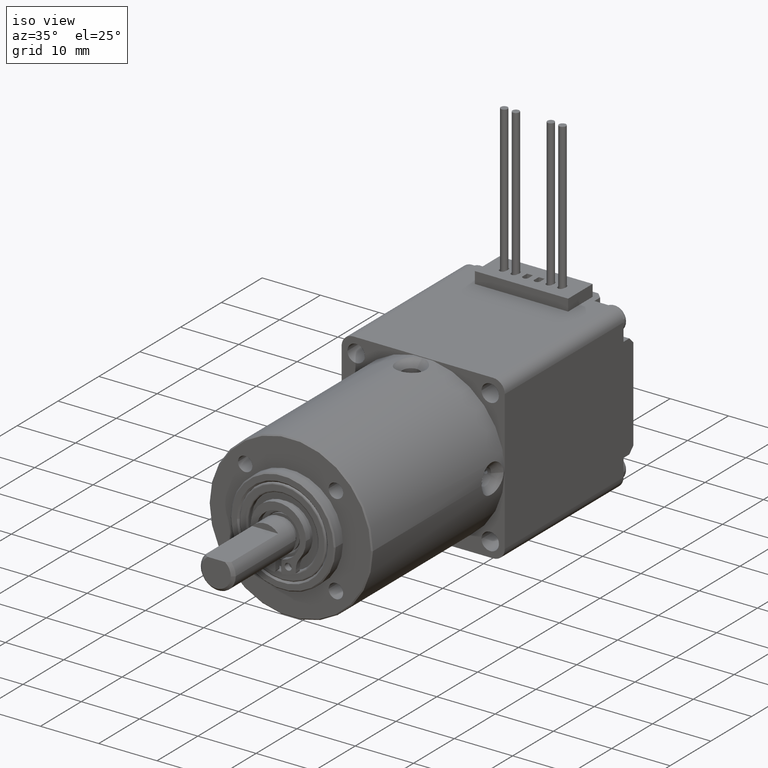
[diagram: clean part render]
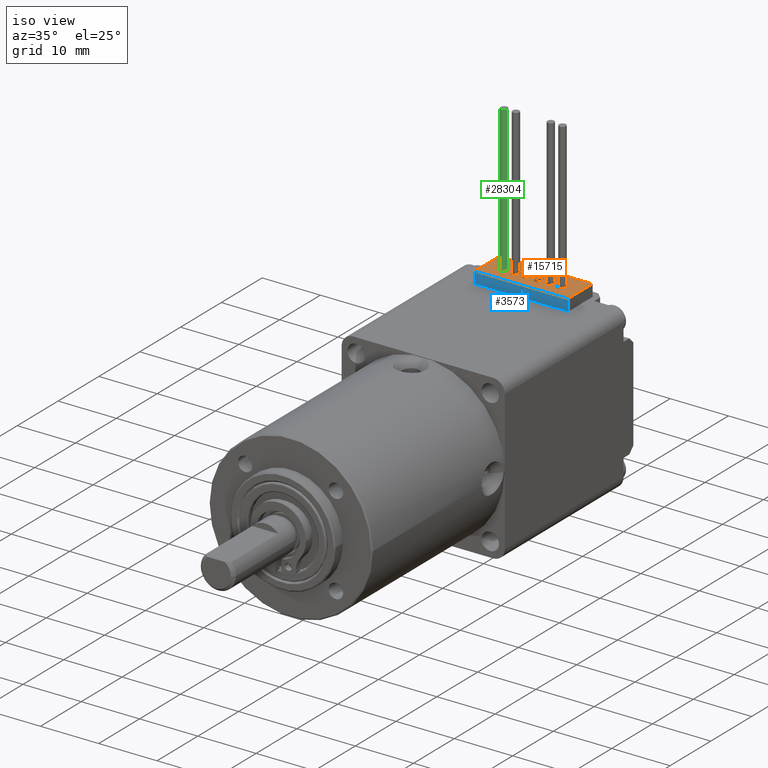
[diagram: same view with three faces highlighted in distinct colors, each labeled with its STEP entity id]
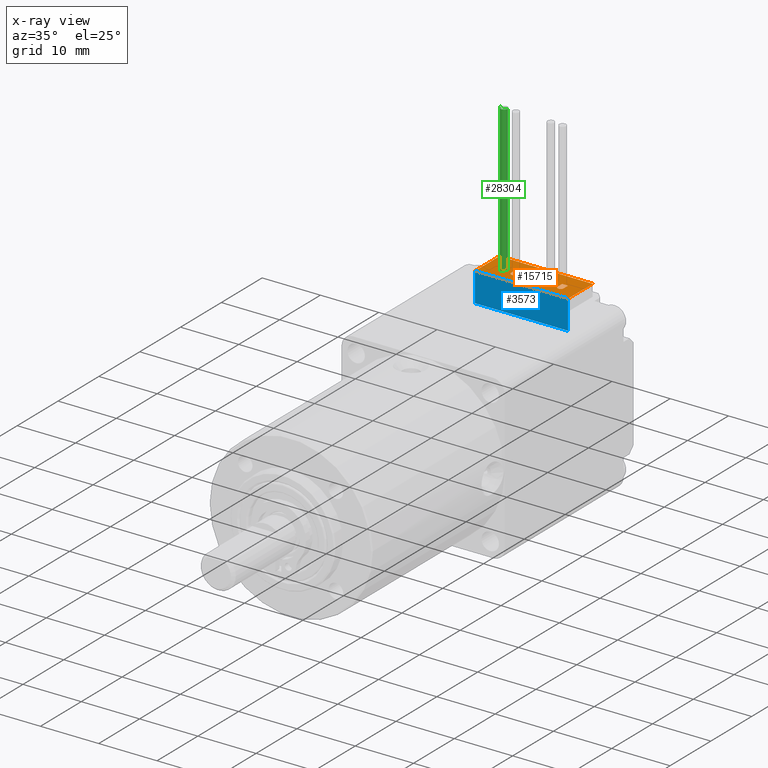
[diagram: x-ray of the same camera — body ghosted, the three highlighted faces saturated]
A machine part, iso view with three faces highlighted in distinct colors.
The next image is the same camera in x-ray (body ghosted, the three faces saturated) — at least one of them is partly hidden behind the body in this view.
Their STEP definitions:

[orange] entity #15715 — the highlighted planar face has unit normal (0, 0, -1).
#7 = CARTESIAN_POINT ( 'NONE',  ( -0.5062211864427633712, 3.499999999999999556, 2.500000000000000000 ) ) ;
#76 = LINE ( 'NONE', #9829, #18754 ) ;
#89 = CARTESIAN_POINT ( 'NONE',  ( -8.000000000000000000, 0.000000000000000000, 2.500000000000000000 ) ) ;
#469 = AXIS2_PLACEMENT_3D ( 'NONE', #10550, #18102, #5594 ) ;
#518 = AXIS2_PLACEMENT_3D ( 'NONE', #22617, #17167, #17483 ) ;
#535 = ORIENTED_EDGE ( 'NONE', *, *, #19281, .F. ) ;
#557 = AXIS2_PLACEMENT_3D ( 'NONE', #6769, #17025, #4203 ) ;
#718 = CIRCLE ( 'NONE', #27326, 0.4999999999999995559 ) ;
#798 = VERTEX_POINT ( 'NONE', #24814 ) ;
#1013 = CARTESIAN_POINT ( 'NONE',  ( -1.499999999999999556, 2.500000000000000000, 2.500000000000000000 ) ) ;
#1094 = ORIENTED_EDGE ( 'NONE', *, *, #5112, .F. ) ;
#1105 = CARTESIAN_POINT ( 'NONE',  ( 2.500000000000000444, 2.500000000000000000, 2.500000000000000000 ) ) ;
#1228 = ORIENTED_EDGE ( 'NONE', *, *, #20457, .F. ) ;
#1257 = CARTESIAN_POINT ( 'NONE',  ( -5.500000000000000000, 2.500000000000000000, 2.500000000000000000 ) ) ;
#1399 = ORIENTED_EDGE ( 'NONE', *, *, #19503, .F. ) ;
#1486 = CARTESIAN_POINT ( 'NONE',  ( -5.003110593221381741, 3.555685881794154568, 2.500000000000000000 ) ) ;
#1495 = DIRECTION ( 'NONE',  ( 1.000000000000000000, 0.000000000000000000, 0.000000000000000000 ) ) ;
#1588 = CARTESIAN_POINT ( 'NONE',  ( -5.003110593221381741, 3.555685881794154568, 2.500000000000000000 ) ) ;
#1641 = DIRECTION ( 'NONE',  ( 0.000000000000000000, 0.000000000000000000, -1.000000000000000000 ) ) ;
#1690 = DIRECTION ( 'NONE',  ( -0.000000000000000000, -1.000000000000000000, -0.000000000000000000 ) ) ;
#2063 = VERTEX_POINT ( 'NONE', #18542 ) ;
#2295 = VECTOR ( 'NONE', #11410, 1000.000000000000000 ) ;
#2318 = LINE ( 'NONE', #12407, #5212 ) ;
#2630 = CARTESIAN_POINT ( 'NONE',  ( 2.496889406778619147, 3.555685881794154568, 2.500000000000000000 ) ) ;
#2836 = CIRCLE ( 'NONE', #22787, 0.4999999999999995559 ) ;
#2873 = CARTESIAN_POINT ( 'NONE',  ( 4.996889406778618259, 3.555685881794154568, 2.500000000000000000 ) ) ;
#3093 = AXIS2_PLACEMENT_3D ( 'NONE', #2873, #7988, #8147 ) ;
#3187 = CIRCLE ( 'NONE', #8739, 0.4999999999999995559 ) ;
#3192 = ORIENTED_EDGE ( 'NONE', *, *, #17500, .F. ) ;
#3227 = EDGE_LOOP ( 'NONE', ( #7575, #535, #20154, #17804, #27450, #11303 ) ) ;
#3383 = VECTOR ( 'NONE', #19199, 1000.000000000000000 ) ;
#3391 = VECTOR ( 'NONE', #28291, 1000.000000000000000 ) ;
#3534 = CARTESIAN_POINT ( 'NONE',  ( 2.500000000000000444, 2.500000000000000000, 2.500000000000000000 ) ) ;
#3626 = CARTESIAN_POINT ( 'NONE',  ( -3.499999999999999556, 2.500000000000000000, 2.500000000000000000 ) ) ;
#3751 = EDGE_CURVE ( 'NONE', #22927, #798, #5145, .T. ) ;
#4026 = FACE_BOUND ( 'NONE', #26112, .T. ) ;
#4040 = EDGE_LOOP ( 'NONE', ( #1094, #1228, #6236, #10515, #20530, #5185 ) ) ;
#4044 = CIRCLE ( 'NONE', #3093, 0.4999999999999995559 ) ;
#4164 = EDGE_CURVE ( 'NONE', #29296, #13663, #4595, .T. ) ;
#4189 = FACE_BOUND ( 'NONE', #22444, .T. ) ;
#4203 = DIRECTION ( 'NONE',  ( -1.000000000000000000, 0.000000000000000000, 0.000000000000000000 ) ) ;
#4243 = AXIS2_PLACEMENT_3D ( 'NONE', #12108, #6835, #19653 ) ;
#4347 = DIRECTION ( 'NONE',  ( -1.000000000000000000, 0.000000000000000000, -0.000000000000000000 ) ) ;
#4387 = CIRCLE ( 'NONE', #17176, 0.4999999999999995559 ) ;
#4507 = EDGE_CURVE ( 'NONE', #21410, #29859, #19404, .T. ) ;
#4595 = LINE ( 'NONE', #26554, #11083 ) ;
#4704 = VERTEX_POINT ( 'NONE', #7 ) ;
#4763 = EDGE_CURVE ( 'NONE', #21325, #21410, #25052, .T. ) ;
#4775 = LINE ( 'NONE', #31397, #3383 ) ;
#5086 = CARTESIAN_POINT ( 'NONE',  ( 0.5000000000000004441, 2.500000000000000000, 2.500000000000000000 ) ) ;
#5112 = EDGE_CURVE ( 'NONE', #26284, #29929, #26414, .T. ) ;
#5131 = EDGE_CURVE ( 'NONE', #29859, #11601, #22114, .T. ) ;
#5145 = LINE ( 'NONE', #12360, #26966 ) ;
#5185 = ORIENTED_EDGE ( 'NONE', *, *, #12958, .F. ) ;
#5212 = VECTOR ( 'NONE', #29572, 1000.000000000000000 ) ;
#5245 = VERTEX_POINT ( 'NONE', #17893 ) ;
#5337 = EDGE_CURVE ( 'NONE', #20295, #5454, #28626, .T. ) ;
#5454 = VERTEX_POINT ( 'NONE', #6652 ) ;
#5468 = DIRECTION ( 'NONE',  ( -1.000000000000000000, 0.000000000000000000, 0.000000000000000000 ) ) ;
#5594 = DIRECTION ( 'NONE',  ( -1.000000000000000000, 0.000000000000000000, 0.000000000000000000 ) ) ;
#5729 = DIRECTION ( 'NONE',  ( 1.000000000000000000, 0.000000000000000000, 0.000000000000000000 ) ) ;
#5918 = LINE ( 'NONE', #8631, #12915 ) ;
#6024 = AXIS2_PLACEMENT_3D ( 'NONE', #11959, #31522, #9539 ) ;
#6042 = VERTEX_POINT ( 'NONE', #17042 ) ;
#6236 = ORIENTED_EDGE ( 'NONE', *, *, #20608, .F. ) ;
#6250 = CARTESIAN_POINT ( 'NONE',  ( 2.996889406778618703, 3.555685881794154568, 2.500000000000000000 ) ) ;
#6263 = CARTESIAN_POINT ( 'NONE',  ( 1.496889406778618037, 3.555685881794154568, 2.500000000000000000 ) ) ;
#6332 = CARTESIAN_POINT ( 'NONE',  ( 2.996889406778618703, 3.555685881794154568, 2.500000000000000000 ) ) ;
#6380 = ORIENTED_EDGE ( 'NONE', *, *, #24423, .F. ) ;
#6438 = DIRECTION ( 'NONE',  ( 0.000000000000000000, 0.000000000000000000, 1.000000000000000000 ) ) ;
#6586 = FACE_BOUND ( 'NONE', #27557, .T. ) ;
#6651 = CARTESIAN_POINT ( 'NONE',  ( 5.493778813557236518, 3.499999999999999556, 2.500000000000000000 ) ) ;
#6652 = CARTESIAN_POINT ( 'NONE',  ( -3.499999999999999556, 2.500000000000000000, 2.500000000000000000 ) ) ;
#6700 = DIRECTION ( 'NONE',  ( -1.000000000000000000, 0.000000000000000000, 0.000000000000000000 ) ) ;
#6754 = FACE_OUTER_BOUND ( 'NONE', #22855, .T. ) ;
#6769 = CARTESIAN_POINT ( 'NONE',  ( 4.996889406778618259, 3.555685881794154568, 2.500000000000000000 ) ) ;
#6835 = DIRECTION ( 'NONE',  ( 0.000000000000000000, 0.000000000000000000, 1.000000000000000000 ) ) ;
#7155 = DIRECTION ( 'NONE',  ( -0.000000000000000000, -1.000000000000000000, -0.000000000000000000 ) ) ;
#7575 = ORIENTED_EDGE ( 'NONE', *, *, #8443, .F. ) ;
#7632 = VECTOR ( 'NONE', #21763, 1000.000000000000000 ) ;
#7655 = ORIENTED_EDGE ( 'NONE', *, *, #29869, .F. ) ;
#7685 = VECTOR ( 'NONE', #19381, 1000.000000000000000 ) ;
#7815 = LINE ( 'NONE', #30266, #20609 ) ;
#7849 = ORIENTED_EDGE ( 'NONE', *, *, #18232, .F. ) ;
#7878 = CARTESIAN_POINT ( 'NONE',  ( -3.003110593221381741, 3.555685881794154568, 2.500000000000000000 ) ) ;
#7988 = DIRECTION ( 'NONE',  ( 0.000000000000000000, 0.000000000000000000, 1.000000000000000000 ) ) ;
#8031 = VERTEX_POINT ( 'NONE', #22587 ) ;
#8033 = CARTESIAN_POINT ( 'NONE',  ( -1.003110593221381519, 3.555685881794154568, 2.500000000000000000 ) ) ;
#8068 = CARTESIAN_POINT ( 'NONE',  ( -3.003110593221381741, 3.555685881794154568, 2.500000000000000000 ) ) ;
#8147 = DIRECTION ( 'NONE',  ( -1.000000000000000000, 0.000000000000000000, 0.000000000000000000 ) ) ;
#8443 = EDGE_CURVE ( 'NONE', #11992, #21325, #4775, .T. ) ;
#8572 = DIRECTION ( 'NONE',  ( -1.000000000000000000, 0.000000000000000000, 0.000000000000000000 ) ) ;
#8631 = CARTESIAN_POINT ( 'NONE',  ( -2.506221186442763482, 2.500000000000000000, 2.500000000000000000 ) ) ;
#8683 = ORIENTED_EDGE ( 'NONE', *, *, #27394, .F. ) ;
#8739 = AXIS2_PLACEMENT_3D ( 'NONE', #19736, #29541, #14623 ) ;
#8872 = ORIENTED_EDGE ( 'NONE', *, *, #9641, .F. ) ;
#8933 = VERTEX_POINT ( 'NONE', #6651 ) ;
#9051 = EDGE_CURVE ( 'NONE', #21996, #798, #17075, .T. ) ;
#9164 = VERTEX_POINT ( 'NONE', #28123 ) ;
#9276 = LINE ( 'NONE', #13779, #16397 ) ;
#9539 = DIRECTION ( 'NONE',  ( -1.000000000000000000, 0.000000000000000000, 0.000000000000000000 ) ) ;
#9553 = VERTEX_POINT ( 'NONE', #19876 ) ;
#9563 = VERTEX_POINT ( 'NONE', #27252 ) ;
#9591 = LINE ( 'NONE', #26446, #7685 ) ;
#9611 = DIRECTION ( 'NONE',  ( -0.000000000000000000, -1.000000000000000000, -0.000000000000000000 ) ) ;
#9641 = EDGE_CURVE ( 'NONE', #9553, #2063, #20737, .T. ) ;
#9829 = CARTESIAN_POINT ( 'NONE',  ( -1.499999999999999556, 2.500000000000000000, 2.500000000000000000 ) ) ;
#10007 = CARTESIAN_POINT ( 'NONE',  ( -4.506221186442763482, 2.500000000000000000, 2.500000000000000000 ) ) ;
#10041 = VERTEX_POINT ( 'NONE', #17733 ) ;
#10471 = DIRECTION ( 'NONE',  ( 1.000000000000000000, 0.000000000000000000, 0.000000000000000000 ) ) ;
#10515 = ORIENTED_EDGE ( 'NONE', *, *, #18795, .F. ) ;
#10550 = CARTESIAN_POINT ( 'NONE',  ( 0.9968894067786184809, 3.555685881794154568, 2.500000000000000000 ) ) ;
#10620 = CIRCLE ( 'NONE', #6024, 0.4999999999999995559 ) ;
#10800 = EDGE_CURVE ( 'NONE', #11601, #26617, #18501, .T. ) ;
#10803 = CARTESIAN_POINT ( 'NONE',  ( -5.500000000000000000, 2.500000000000000000, 2.500000000000000000 ) ) ;
#10976 = DIRECTION ( 'NONE',  ( 0.000000000000000000, 0.000000000000000000, 1.000000000000000000 ) ) ;
#11061 = CARTESIAN_POINT ( 'NONE',  ( -2.503110593221382185, 3.555685881794154568, 2.500000000000000000 ) ) ;
#11083 = VECTOR ( 'NONE', #7155, 1000.000000000000000 ) ;
#11117 = CARTESIAN_POINT ( 'NONE',  ( 0.5000000000000004441, 2.500000000000000000, 2.500000000000000000 ) ) ;
#11207 = VERTEX_POINT ( 'NONE', #21182 ) ;
#11246 = DIRECTION ( 'NONE',  ( -1.000000000000000000, 0.000000000000000000, 0.000000000000000000 ) ) ;
#11303 = ORIENTED_EDGE ( 'NONE', *, *, #4763, .F. ) ;
#11311 = AXIS2_PLACEMENT_3D ( 'NONE', #7878, #27430, #5468 ) ;
#11410 = DIRECTION ( 'NONE',  ( 1.000000000000000000, 0.000000000000000000, 0.000000000000000000 ) ) ;
#11495 = AXIS2_PLACEMENT_3D ( 'NONE', #1588, #16013, #6700 ) ;
#11521 = DIRECTION ( 'NONE',  ( 1.000000000000000000, 0.000000000000000000, 0.000000000000000000 ) ) ;
#11601 = VERTEX_POINT ( 'NONE', #19366 ) ;
#11959 = CARTESIAN_POINT ( 'NONE',  ( -5.003110593221381741, 3.555685881794154568, 2.500000000000000000 ) ) ;
#11992 = VERTEX_POINT ( 'NONE', #21707 ) ;
#12035 = CARTESIAN_POINT ( 'NONE',  ( -8.000000000000000000, 6.000000000000000000, 2.500000000000000000 ) ) ;
#12108 = CARTESIAN_POINT ( 'NONE',  ( 4.996889406778618259, 3.555685881794154568, 2.500000000000000000 ) ) ;
#12352 = EDGE_CURVE ( 'NONE', #28931, #11207, #23122, .T. ) ;
#12360 = CARTESIAN_POINT ( 'NONE',  ( 8.000000000000000000, 6.000000000000000000, 2.500000000000000000 ) ) ;
#12407 = CARTESIAN_POINT ( 'NONE',  ( -0.5062211864427633712, 2.500000000000000000, 2.500000000000000000 ) ) ;
#12503 = EDGE_CURVE ( 'NONE', #29126, #9553, #2836, .T. ) ;
#12564 = VERTEX_POINT ( 'NONE', #19731 ) ;
#12689 = ORIENTED_EDGE ( 'NONE', *, *, #19231, .F. ) ;
#12915 = VECTOR ( 'NONE', #20668, 1000.000000000000000 ) ;
#12958 = EDGE_CURVE ( 'NONE', #29929, #9563, #4387, .T. ) ;
#13025 = ORIENTED_EDGE ( 'NONE', *, *, #17137, .F. ) ;
#13118 = LINE ( 'NONE', #1105, #15445 ) ;
#13561 = DIRECTION ( 'NONE',  ( 0.000000000000000000, 0.000000000000000000, 1.000000000000000000 ) ) ;
#13628 = DIRECTION ( 'NONE',  ( 0.000000000000000000, 0.000000000000000000, 1.000000000000000000 ) ) ;
#13663 = VERTEX_POINT ( 'NONE', #26049 ) ;
#13779 = CARTESIAN_POINT ( 'NONE',  ( -3.499999999999999556, 2.500000000000000000, 2.500000000000000000 ) ) ;
#13799 = EDGE_CURVE ( 'NONE', #30531, #28931, #76, .T. ) ;
#13815 = FACE_BOUND ( 'NONE', #29844, .T. ) ;
#13904 = CARTESIAN_POINT ( 'NONE',  ( -8.000000000000000000, 0.000000000000000000, 2.500000000000000000 ) ) ;
#14060 = LINE ( 'NONE', #19506, #23137 ) ;
#14375 = CIRCLE ( 'NONE', #557, 0.4999999999999995559 ) ;
#14467 = CARTESIAN_POINT ( 'NONE',  ( 4.500000000000000888, 3.500000000000000000, 2.500000000000000000 ) ) ;
#14623 = DIRECTION ( 'NONE',  ( -1.000000000000000000, 0.000000000000000000, 0.000000000000000000 ) ) ;
#14800 = CARTESIAN_POINT ( 'NONE',  ( 8.000000000000000000, 6.000000000000000000, 2.500000000000000000 ) ) ;
#15247 = ORIENTED_EDGE ( 'NONE', *, *, #22386, .F. ) ;
#15360 = VECTOR ( 'NONE', #22881, 1000.000000000000000 ) ;
#15396 = VECTOR ( 'NONE', #1495, 1000.000000000000000 ) ;
#15417 = CIRCLE ( 'NONE', #20576, 0.4999999999999995559 ) ;
#15445 = VECTOR ( 'NONE', #21120, 1000.000000000000000 ) ;
#15477 = ORIENTED_EDGE ( 'NONE', *, *, #26859, .F. ) ;
#15494 = VECTOR ( 'NONE', #17706, 1000.000000000000000 ) ;
#15625 = LINE ( 'NONE', #10803, #19126 ) ;
#15648 = DIRECTION ( 'NONE',  ( -1.000000000000000000, 0.000000000000000000, 0.000000000000000000 ) ) ;
#15715 = ADVANCED_FACE ( 'NONE', ( #4026, #28564, #28732, #6586, #13815, #4189, #6754 ), #23589, .F. ) ;
#15803 = AXIS2_PLACEMENT_3D ( 'NONE', #25760, #13561, #23327 ) ;
#16013 = DIRECTION ( 'NONE',  ( 0.000000000000000000, 0.000000000000000000, 1.000000000000000000 ) ) ;
#16079 = EDGE_CURVE ( 'NONE', #2063, #6042, #10620, .T. ) ;
#16263 = EDGE_CURVE ( 'NONE', #9563, #27969, #22939, .T. ) ;
#16367 = ORIENTED_EDGE ( 'NONE', *, *, #9051, .T. ) ;
#16397 = VECTOR ( 'NONE', #11521, 1000.000000000000000 ) ;
#16532 = CARTESIAN_POINT ( 'NONE',  ( -8.000000000000000000, 6.000000000000000000, 2.500000000000000000 ) ) ;
#16736 = CARTESIAN_POINT ( 'NONE',  ( 2.500000000000000444, 3.500000000000000000, 2.500000000000000000 ) ) ;
#17025 = DIRECTION ( 'NONE',  ( 0.000000000000000000, 0.000000000000000000, 1.000000000000000000 ) ) ;
#17042 = CARTESIAN_POINT ( 'NONE',  ( -5.500000000000000000, 3.499999999999999556, 2.500000000000000000 ) ) ;
#17075 = LINE ( 'NONE', #89, #20811 ) ;
#17137 = EDGE_CURVE ( 'NONE', #4704, #26600, #29703, .T. ) ;
#17167 = DIRECTION ( 'NONE',  ( 0.000000000000000000, 0.000000000000000000, 1.000000000000000000 ) ) ;
#17176 = AXIS2_PLACEMENT_3D ( 'NONE', #6250, #13628, #23397 ) ;
#17479 = CIRCLE ( 'NONE', #21570, 0.4999999999999995559 ) ;
#17483 = DIRECTION ( 'NONE',  ( -1.000000000000000000, 0.000000000000000000, 0.000000000000000000 ) ) ;
#17500 = EDGE_CURVE ( 'NONE', #5454, #8031, #9276, .T. ) ;
#17553 = LINE ( 'NONE', #10007, #15494 ) ;
#17706 = DIRECTION ( 'NONE',  ( 0.000000000000000000, 1.000000000000000000, 0.000000000000000000 ) ) ;
#17733 = CARTESIAN_POINT ( 'NONE',  ( 5.496889406778618259, 3.555685881794154568, 2.500000000000000000 ) ) ;
#17747 = ORIENTED_EDGE ( 'NONE', *, *, #5337, .F. ) ;
#17804 = ORIENTED_EDGE ( 'NONE', *, *, #5131, .F. ) ;
#17893 = CARTESIAN_POINT ( 'NONE',  ( -3.503110593221381297, 3.555685881794154568, 2.500000000000000000 ) ) ;
#18102 = DIRECTION ( 'NONE',  ( 0.000000000000000000, 0.000000000000000000, 1.000000000000000000 ) ) ;
#18115 = CARTESIAN_POINT ( 'NONE',  ( 3.493778813557236518, 2.500000000000000000, 2.500000000000000000 ) ) ;
#18232 = EDGE_CURVE ( 'NONE', #10041, #29594, #14375, .T. ) ;
#18233 = LINE ( 'NONE', #1257, #15360 ) ;
#18494 = CIRCLE ( 'NONE', #11311, 0.4999999999999995559 ) ;
#18501 = LINE ( 'NONE', #11117, #3391 ) ;
#18521 = EDGE_CURVE ( 'NONE', #25131, #19898, #18494, .T. ) ;
#18542 = CARTESIAN_POINT ( 'NONE',  ( -5.503110593221380853, 3.555685881794154568, 2.500000000000000000 ) ) ;
#18754 = VECTOR ( 'NONE', #19153, 1000.000000000000000 ) ;
#18795 = EDGE_CURVE ( 'NONE', #27969, #28552, #15417, .T. ) ;
#18880 = ORIENTED_EDGE ( 'NONE', *, *, #28345, .F. ) ;
#19029 = DIRECTION ( 'NONE',  ( -0.000000000000000000, -1.000000000000000000, -0.000000000000000000 ) ) ;
#19057 = EDGE_CURVE ( 'NONE', #11207, #4704, #2318, .T. ) ;
#19126 = VECTOR ( 'NONE', #1690, 1000.000000000000000 ) ;
#19153 = DIRECTION ( 'NONE',  ( -0.000000000000000000, -1.000000000000000000, -0.000000000000000000 ) ) ;
#19199 = DIRECTION ( 'NONE',  ( 0.000000000000000000, 1.000000000000000000, 0.000000000000000000 ) ) ;
#19200 = CARTESIAN_POINT ( 'NONE',  ( 0.9968894067786184809, 3.555685881794154568, 2.500000000000000000 ) ) ;
#19231 = EDGE_CURVE ( 'NONE', #5245, #20295, #17479, .T. ) ;
#19281 = EDGE_CURVE ( 'NONE', #26617, #11992, #27792, .T. ) ;
#19366 = CARTESIAN_POINT ( 'NONE',  ( 0.5000000000000004441, 3.500000000000000000, 2.500000000000000000 ) ) ;
#19381 = DIRECTION ( 'NONE',  ( 0.000000000000000000, 1.000000000000000000, 0.000000000000000000 ) ) ;
#19382 = ORIENTED_EDGE ( 'NONE', *, *, #16079, .F. ) ;
#19404 = CIRCLE ( 'NONE', #15803, 0.4999999999999995559 ) ;
#19418 = EDGE_CURVE ( 'NONE', #9164, #22927, #30679, .T. ) ;
#19503 = EDGE_CURVE ( 'NONE', #19898, #5245, #3187, .T. ) ;
#19506 = CARTESIAN_POINT ( 'NONE',  ( 2.500000000000000444, 2.500000000000000000, 2.500000000000000000 ) ) ;
#19653 = DIRECTION ( 'NONE',  ( -1.000000000000000000, 0.000000000000000000, 0.000000000000000000 ) ) ;
#19731 = CARTESIAN_POINT ( 'NONE',  ( -4.506221186442763482, 2.500000000000000000, 2.500000000000000000 ) ) ;
#19736 = CARTESIAN_POINT ( 'NONE',  ( -3.003110593221381741, 3.555685881794154568, 2.500000000000000000 ) ) ;
#19876 = CARTESIAN_POINT ( 'NONE',  ( -4.503110593221381741, 3.555685881794154568, 2.500000000000000000 ) ) ;
#19898 = VERTEX_POINT ( 'NONE', #11061 ) ;
#20024 = CARTESIAN_POINT ( 'NONE',  ( -3.499999999999999556, 3.500000000000000000, 2.500000000000000000 ) ) ;
#20154 = ORIENTED_EDGE ( 'NONE', *, *, #10800, .F. ) ;
#20204 = ORIENTED_EDGE ( 'NONE', *, *, #29812, .F. ) ;
#20295 = VERTEX_POINT ( 'NONE', #20024 ) ;
#20331 = CARTESIAN_POINT ( 'NONE',  ( 0.4968894067786189805, 3.555685881794154568, 2.500000000000000000 ) ) ;
#20406 = DIRECTION ( 'NONE',  ( -1.000000000000000000, 0.000000000000000000, 0.000000000000000000 ) ) ;
#20457 = EDGE_CURVE ( 'NONE', #25303, #26284, #13118, .T. ) ;
#20530 = ORIENTED_EDGE ( 'NONE', *, *, #16263, .F. ) ;
#20532 = DIRECTION ( 'NONE',  ( 0.000000000000000000, 0.000000000000000000, 1.000000000000000000 ) ) ;
#20569 = DIRECTION ( 'NONE',  ( 0.000000000000000000, 0.000000000000000000, 1.000000000000000000 ) ) ;
#20576 = AXIS2_PLACEMENT_3D ( 'NONE', #27823, #10976, #29762 ) ;
#20608 = EDGE_CURVE ( 'NONE', #28552, #25303, #14060, .T. ) ;
#20609 = VECTOR ( 'NONE', #5729, 1000.000000000000000 ) ;
#20668 = DIRECTION ( 'NONE',  ( 0.000000000000000000, 1.000000000000000000, 0.000000000000000000 ) ) ;
#20737 = CIRCLE ( 'NONE', #11495, 0.4999999999999995559 ) ;
#20799 = DIRECTION ( 'NONE',  ( -0.000000000000000000, -1.000000000000000000, -0.000000000000000000 ) ) ;
#20811 = VECTOR ( 'NONE', #10471, 1000.000000000000000 ) ;
#20942 = ORIENTED_EDGE ( 'NONE', *, *, #23520, .T. ) ;
#20996 = CARTESIAN_POINT ( 'NONE',  ( 5.493778813557236518, 2.500000000000000000, 2.500000000000000000 ) ) ;
#21120 = DIRECTION ( 'NONE',  ( 1.000000000000000000, 0.000000000000000000, 0.000000000000000000 ) ) ;
#21182 = CARTESIAN_POINT ( 'NONE',  ( -0.5062211864427633712, 2.500000000000000000, 2.500000000000000000 ) ) ;
#21188 = ORIENTED_EDGE ( 'NONE', *, *, #19057, .F. ) ;
#21198 = CARTESIAN_POINT ( 'NONE',  ( -8.000000000000000000, 6.000000000000000000, 2.500000000000000000 ) ) ;
#21325 = VERTEX_POINT ( 'NONE', #22464 ) ;
#21410 = VERTEX_POINT ( 'NONE', #6263 ) ;
#21437 = CARTESIAN_POINT ( 'NONE',  ( 3.493778813557236518, 2.500000000000000000, 2.500000000000000000 ) ) ;
#21479 = ORIENTED_EDGE ( 'NONE', *, *, #3751, .F. ) ;
#21570 = AXIS2_PLACEMENT_3D ( 'NONE', #8068, #20569, #20406 ) ;
#21707 = CARTESIAN_POINT ( 'NONE',  ( 1.493778813557236518, 2.500000000000000000, 2.500000000000000000 ) ) ;
#21763 = DIRECTION ( 'NONE',  ( 0.000000000000000000, 1.000000000000000000, 0.000000000000000000 ) ) ;
#21991 = ORIENTED_EDGE ( 'NONE', *, *, #4164, .F. ) ;
#21996 = VERTEX_POINT ( 'NONE', #13904 ) ;
#22020 = CARTESIAN_POINT ( 'NONE',  ( -5.500000000000000000, 2.500000000000000000, 2.500000000000000000 ) ) ;
#22047 = ORIENTED_EDGE ( 'NONE', *, *, #12503, .F. ) ;
#22114 = CIRCLE ( 'NONE', #28794, 0.4999999999999995559 ) ;
#22130 = LINE ( 'NONE', #12035, #31186 ) ;
#22386 = EDGE_CURVE ( 'NONE', #26600, #22510, #718, .T. ) ;
#22444 = EDGE_LOOP ( 'NONE', ( #6380, #24061, #19382, #8872, #22047, #8683 ) ) ;
#22464 = CARTESIAN_POINT ( 'NONE',  ( 1.493778813557236518, 3.499999999999999556, 2.500000000000000000 ) ) ;
#22510 = VERTEX_POINT ( 'NONE', #28467 ) ;
#22587 = CARTESIAN_POINT ( 'NONE',  ( -2.506221186442763482, 2.500000000000000000, 2.500000000000000000 ) ) ;
#22617 = CARTESIAN_POINT ( 'NONE',  ( -1.003110593221381519, 3.555685881794154568, 2.500000000000000000 ) ) ;
#22787 = AXIS2_PLACEMENT_3D ( 'NONE', #1486, #6438, #11246 ) ;
#22855 = EDGE_LOOP ( 'NONE', ( #16367, #21479, #30879, #20942 ) ) ;
#22881 = DIRECTION ( 'NONE',  ( 1.000000000000000000, 0.000000000000000000, 0.000000000000000000 ) ) ;
#22927 = VERTEX_POINT ( 'NONE', #14800 ) ;
#22939 = CIRCLE ( 'NONE', #31641, 0.4999999999999995559 ) ;
#23122 = LINE ( 'NONE', #1013, #2295 ) ;
#23137 = VECTOR ( 'NONE', #19029, 1000.000000000000000 ) ;
#23318 = DIRECTION ( 'NONE',  ( 0.000000000000000000, 0.000000000000000000, 1.000000000000000000 ) ) ;
#23327 = DIRECTION ( 'NONE',  ( -1.000000000000000000, 0.000000000000000000, 0.000000000000000000 ) ) ;
#23397 = DIRECTION ( 'NONE',  ( -1.000000000000000000, 0.000000000000000000, 0.000000000000000000 ) ) ;
#23520 = EDGE_CURVE ( 'NONE', #9164, #21996, #22130, .T. ) ;
#23589 = PLANE ( 'NONE',  #29046 ) ;
#24061 = ORIENTED_EDGE ( 'NONE', *, *, #27634, .F. ) ;
#24423 = EDGE_CURVE ( 'NONE', #28587, #12564, #18233, .T. ) ;
#24814 = CARTESIAN_POINT ( 'NONE',  ( 8.000000000000000000, 0.000000000000000000, 2.500000000000000000 ) ) ;
#25052 = CIRCLE ( 'NONE', #469, 0.4999999999999995559 ) ;
#25123 = CARTESIAN_POINT ( 'NONE',  ( -1.003110593221381519, 3.555685881794154568, 2.500000000000000000 ) ) ;
#25131 = VERTEX_POINT ( 'NONE', #30005 ) ;
#25204 = VERTEX_POINT ( 'NONE', #20996 ) ;
#25303 = VERTEX_POINT ( 'NONE', #3534 ) ;
#25470 = CARTESIAN_POINT ( 'NONE',  ( -4.506221186442763482, 3.499999999999999556, 2.500000000000000000 ) ) ;
#25609 = DIRECTION ( 'NONE',  ( -0.000000000000000000, -1.000000000000000000, -0.000000000000000000 ) ) ;
#25760 = CARTESIAN_POINT ( 'NONE',  ( 0.9968894067786184809, 3.555685881794154568, 2.500000000000000000 ) ) ;
#25965 = CARTESIAN_POINT ( 'NONE',  ( -0.5031105932213819631, 3.555685881794154568, 2.500000000000000000 ) ) ;
#26049 = CARTESIAN_POINT ( 'NONE',  ( 4.500000000000000888, 2.500000000000000000, 2.500000000000000000 ) ) ;
#26112 = EDGE_LOOP ( 'NONE', ( #20204, #15477, #21991, #27973, #7849, #7655 ) ) ;
#26188 = ORIENTED_EDGE ( 'NONE', *, *, #30794, .F. ) ;
#26284 = VERTEX_POINT ( 'NONE', #18115 ) ;
#26414 = LINE ( 'NONE', #21437, #7632 ) ;
#26446 = CARTESIAN_POINT ( 'NONE',  ( 5.493778813557236518, 2.500000000000000000, 2.500000000000000000 ) ) ;
#26554 = CARTESIAN_POINT ( 'NONE',  ( 4.500000000000000888, 2.500000000000000000, 2.500000000000000000 ) ) ;
#26600 = VERTEX_POINT ( 'NONE', #25965 ) ;
#26617 = VERTEX_POINT ( 'NONE', #5086 ) ;
#26859 = EDGE_CURVE ( 'NONE', #13663, #25204, #7815, .T. ) ;
#26966 = VECTOR ( 'NONE', #20799, 1000.000000000000000 ) ;
#27029 = DIRECTION ( 'NONE',  ( -1.000000000000000000, 0.000000000000000000, 0.000000000000000000 ) ) ;
#27189 = EDGE_CURVE ( 'NONE', #29594, #29296, #27292, .T. ) ;
#27252 = CARTESIAN_POINT ( 'NONE',  ( 3.496889406778618259, 3.555685881794154568, 2.500000000000000000 ) ) ;
#27292 = CIRCLE ( 'NONE', #4243, 0.4999999999999995559 ) ;
#27326 = AXIS2_PLACEMENT_3D ( 'NONE', #25123, #29619, #27029 ) ;
#27365 = DIRECTION ( 'NONE',  ( 0.000000000000000000, 0.000000000000000000, 1.000000000000000000 ) ) ;
#27379 = ORIENTED_EDGE ( 'NONE', *, *, #12352, .F. ) ;
#27385 = CARTESIAN_POINT ( 'NONE',  ( -1.499999999999999556, 2.500000000000000000, 2.500000000000000000 ) ) ;
#27394 = EDGE_CURVE ( 'NONE', #12564, #29126, #17553, .T. ) ;
#27430 = DIRECTION ( 'NONE',  ( 0.000000000000000000, 0.000000000000000000, 1.000000000000000000 ) ) ;
#27436 = DIRECTION ( 'NONE',  ( -1.000000000000000000, 0.000000000000000000, 0.000000000000000000 ) ) ;
#27450 = ORIENTED_EDGE ( 'NONE', *, *, #4507, .F. ) ;
#27557 = EDGE_LOOP ( 'NONE', ( #21188, #27379, #28402, #26188, #15247, #13025 ) ) ;
#27624 = CARTESIAN_POINT ( 'NONE',  ( 0.5000000000000004441, 2.500000000000000000, 2.500000000000000000 ) ) ;
#27634 = EDGE_CURVE ( 'NONE', #6042, #28587, #15625, .T. ) ;
#27685 = VECTOR ( 'NONE', #30201, 1000.000000000000000 ) ;
#27792 = LINE ( 'NONE', #27624, #27685 ) ;
#27823 = CARTESIAN_POINT ( 'NONE',  ( 2.996889406778618703, 3.555685881794154568, 2.500000000000000000 ) ) ;
#27969 = VERTEX_POINT ( 'NONE', #2630 ) ;
#27973 = ORIENTED_EDGE ( 'NONE', *, *, #27189, .F. ) ;
#28123 = CARTESIAN_POINT ( 'NONE',  ( -8.000000000000000000, 6.000000000000000000, 2.500000000000000000 ) ) ;
#28152 = AXIS2_PLACEMENT_3D ( 'NONE', #8033, #20532, #27436 ) ;
#28278 = CARTESIAN_POINT ( 'NONE',  ( -1.499999999999999556, 3.500000000000000000, 2.500000000000000000 ) ) ;
#28291 = DIRECTION ( 'NONE',  ( -0.000000000000000000, -1.000000000000000000, -0.000000000000000000 ) ) ;
#28345 = EDGE_CURVE ( 'NONE', #8031, #25131, #5918, .T. ) ;
#28402 = ORIENTED_EDGE ( 'NONE', *, *, #13799, .F. ) ;
#28467 = CARTESIAN_POINT ( 'NONE',  ( -1.503110593221381075, 3.555685881794154568, 2.500000000000000000 ) ) ;
#28552 = VERTEX_POINT ( 'NONE', #16736 ) ;
#28564 = FACE_BOUND ( 'NONE', #4040, .T. ) ;
#28587 = VERTEX_POINT ( 'NONE', #22020 ) ;
#28626 = LINE ( 'NONE', #3626, #30330 ) ;
#28732 = FACE_BOUND ( 'NONE', #3227, .T. ) ;
#28794 = AXIS2_PLACEMENT_3D ( 'NONE', #19200, #27365, #15648 ) ;
#28931 = VERTEX_POINT ( 'NONE', #27385 ) ;
#29046 = AXIS2_PLACEMENT_3D ( 'NONE', #16532, #1641, #4347 ) ;
#29126 = VERTEX_POINT ( 'NONE', #25470 ) ;
#29296 = VERTEX_POINT ( 'NONE', #14467 ) ;
#29503 = CARTESIAN_POINT ( 'NONE',  ( 3.493778813557236518, 3.499999999999999556, 2.500000000000000000 ) ) ;
#29541 = DIRECTION ( 'NONE',  ( 0.000000000000000000, 0.000000000000000000, 1.000000000000000000 ) ) ;
#29572 = DIRECTION ( 'NONE',  ( 0.000000000000000000, 1.000000000000000000, 0.000000000000000000 ) ) ;
#29594 = VERTEX_POINT ( 'NONE', #30793 ) ;
#29619 = DIRECTION ( 'NONE',  ( 0.000000000000000000, 0.000000000000000000, 1.000000000000000000 ) ) ;
#29703 = CIRCLE ( 'NONE', #518, 0.4999999999999995559 ) ;
#29762 = DIRECTION ( 'NONE',  ( -1.000000000000000000, 0.000000000000000000, 0.000000000000000000 ) ) ;
#29812 = EDGE_CURVE ( 'NONE', #25204, #8933, #9591, .T. ) ;
#29844 = EDGE_LOOP ( 'NONE', ( #18880, #3192, #17747, #12689, #1399, #31401 ) ) ;
#29859 = VERTEX_POINT ( 'NONE', #20331 ) ;
#29869 = EDGE_CURVE ( 'NONE', #8933, #10041, #4044, .T. ) ;
#29929 = VERTEX_POINT ( 'NONE', #29503 ) ;
#30005 = CARTESIAN_POINT ( 'NONE',  ( -2.506221186442763482, 3.499999999999999556, 2.500000000000000000 ) ) ;
#30201 = DIRECTION ( 'NONE',  ( 1.000000000000000000, 0.000000000000000000, 0.000000000000000000 ) ) ;
#30266 = CARTESIAN_POINT ( 'NONE',  ( 4.500000000000000888, 2.500000000000000000, 2.500000000000000000 ) ) ;
#30330 = VECTOR ( 'NONE', #25609, 1000.000000000000000 ) ;
#30531 = VERTEX_POINT ( 'NONE', #28278 ) ;
#30679 = LINE ( 'NONE', #21198, #15396 ) ;
#30793 = CARTESIAN_POINT ( 'NONE',  ( 4.496889406778619147, 3.555685881794154568, 2.500000000000000000 ) ) ;
#30794 = EDGE_CURVE ( 'NONE', #22510, #30531, #31215, .T. ) ;
#30879 = ORIENTED_EDGE ( 'NONE', *, *, #19418, .F. ) ;
#31186 = VECTOR ( 'NONE', #9611, 1000.000000000000000 ) ;
#31215 = CIRCLE ( 'NONE', #28152, 0.4999999999999995559 ) ;
#31397 = CARTESIAN_POINT ( 'NONE',  ( 1.493778813557236518, 2.500000000000000000, 2.500000000000000000 ) ) ;
#31401 = ORIENTED_EDGE ( 'NONE', *, *, #18521, .F. ) ;
#31522 = DIRECTION ( 'NONE',  ( 0.000000000000000000, 0.000000000000000000, 1.000000000000000000 ) ) ;
#31641 = AXIS2_PLACEMENT_3D ( 'NONE', #6332, #23318, #8572 ) ;

[blue] entity #3573 — the highlighted planar face has unit normal (-0, -1, 0).
#1017 = VECTOR ( 'NONE', #5472, 1000.000000000000000 ) ;
#1495 = DIRECTION ( 'NONE',  ( 1.000000000000000000, 0.000000000000000000, 0.000000000000000000 ) ) ;
#2125 = DIRECTION ( 'NONE',  ( 0.000000000000000000, -0.000000000000000000, 1.000000000000000000 ) ) ;
#3573 = ADVANCED_FACE ( 'NONE', ( #16851 ), #21676, .T. ) ;
#5472 = DIRECTION ( 'NONE',  ( -1.000000000000000000, -0.000000000000000000, -0.000000000000000000 ) ) ;
#5555 = VERTEX_POINT ( 'NONE', #28961 ) ;
#6048 = CARTESIAN_POINT ( 'NONE',  ( -8.000000000000000000, 6.000000000000000000, -2.500000000000000000 ) ) ;
#7634 = AXIS2_PLACEMENT_3D ( 'NONE', #21345, #31299, #2125 ) ;
#8176 = CARTESIAN_POINT ( 'NONE',  ( -8.000000000000000000, 6.000000000000000000, -2.500000000000000000 ) ) ;
#9164 = VERTEX_POINT ( 'NONE', #28123 ) ;
#9675 = VECTOR ( 'NONE', #24090, 1000.000000000000000 ) ;
#11634 = ORIENTED_EDGE ( 'NONE', *, *, #30654, .T. ) ;
#12324 = VECTOR ( 'NONE', #18381, 1000.000000000000000 ) ;
#14800 = CARTESIAN_POINT ( 'NONE',  ( 8.000000000000000000, 6.000000000000000000, 2.500000000000000000 ) ) ;
#15095 = CARTESIAN_POINT ( 'NONE',  ( -8.000000000000000000, 6.000000000000000000, -2.500000000000000000 ) ) ;
#15396 = VECTOR ( 'NONE', #1495, 1000.000000000000000 ) ;
#15918 = VERTEX_POINT ( 'NONE', #8176 ) ;
#16816 = ORIENTED_EDGE ( 'NONE', *, *, #19418, .T. ) ;
#16851 = FACE_OUTER_BOUND ( 'NONE', #26142, .T. ) ;
#17883 = EDGE_CURVE ( 'NONE', #15918, #9164, #28017, .T. ) ;
#18381 = DIRECTION ( 'NONE',  ( 0.000000000000000000, 0.000000000000000000, 1.000000000000000000 ) ) ;
#19125 = LINE ( 'NONE', #15095, #1017 ) ;
#19418 = EDGE_CURVE ( 'NONE', #9164, #22927, #30679, .T. ) ;
#19743 = LINE ( 'NONE', #24418, #9675 ) ;
#19936 = ORIENTED_EDGE ( 'NONE', *, *, #17883, .T. ) ;
#21198 = CARTESIAN_POINT ( 'NONE',  ( -8.000000000000000000, 6.000000000000000000, 2.500000000000000000 ) ) ;
#21345 = CARTESIAN_POINT ( 'NONE',  ( 0.000000000000000000, 6.000000000000000000, 0.000000000000000000 ) ) ;
#21676 = PLANE ( 'NONE',  #7634 ) ;
#22927 = VERTEX_POINT ( 'NONE', #14800 ) ;
#24090 = DIRECTION ( 'NONE',  ( -0.000000000000000000, -0.000000000000000000, -1.000000000000000000 ) ) ;
#24418 = CARTESIAN_POINT ( 'NONE',  ( 8.000000000000000000, 6.000000000000000000, -2.500000000000000000 ) ) ;
#25466 = ORIENTED_EDGE ( 'NONE', *, *, #30775, .T. ) ;
#26142 = EDGE_LOOP ( 'NONE', ( #11634, #25466, #19936, #16816 ) ) ;
#28017 = LINE ( 'NONE', #6048, #12324 ) ;
#28123 = CARTESIAN_POINT ( 'NONE',  ( -8.000000000000000000, 6.000000000000000000, 2.500000000000000000 ) ) ;
#28961 = CARTESIAN_POINT ( 'NONE',  ( 8.000000000000000000, 6.000000000000000000, -2.500000000000000000 ) ) ;
#30654 = EDGE_CURVE ( 'NONE', #22927, #5555, #19743, .T. ) ;
#30679 = LINE ( 'NONE', #21198, #15396 ) ;
#30775 = EDGE_CURVE ( 'NONE', #5555, #15918, #19125, .T. ) ;
#31299 = DIRECTION ( 'NONE',  ( 0.000000000000000000, 1.000000000000000000, 0.000000000000000000 ) ) ;

[green] entity #28304 — the highlighted cylindrical surface (edge-blend (fillet) strip) has radius 0.5919 mm, axis along (0, 0, -1).
#168 = VERTEX_POINT ( 'NONE', #3854 ) ;
#435 = LINE ( 'NONE', #2520, #7488 ) ;
#1004 = AXIS2_PLACEMENT_3D ( 'NONE', #7224, #7385, #10085 ) ;
#1397 = ORIENTED_EDGE ( 'NONE', *, *, #23533, .T. ) ;
#1505 = CIRCLE ( 'NONE', #19419, 0.5919458479520072203 ) ;
#1857 = CYLINDRICAL_SURFACE ( 'NONE', #22640, 0.5919458479520072203 ) ;
#2520 = CARTESIAN_POINT ( 'NONE',  ( 5.591945847952008108, 3.100000000000000089, 27.50000000000000000 ) ) ;
#3854 = CARTESIAN_POINT ( 'NONE',  ( 5.591945847952008108, 3.100000000000000089, 27.50000000000000000 ) ) ;
#7224 = CARTESIAN_POINT ( 'NONE',  ( 5.000000000000000888, 3.100000000000000089, -2.500000000000000000 ) ) ;
#7385 = DIRECTION ( 'NONE',  ( 0.000000000000000000, 0.000000000000000000, 1.000000000000000000 ) ) ;
#7488 = VECTOR ( 'NONE', #10185, 1000.000000000000000 ) ;
#7920 = CARTESIAN_POINT ( 'NONE',  ( 4.408054152047993668, 3.100000000000000089, 27.50000000000000000 ) ) ;
#8547 = EDGE_CURVE ( 'NONE', #168, #13613, #435, .T. ) ;
#9212 = CARTESIAN_POINT ( 'NONE',  ( 5.000000000000000888, 3.100000000000000089, 27.50000000000000000 ) ) ;
#10085 = DIRECTION ( 'NONE',  ( 1.000000000000000000, 0.000000000000000000, 0.000000000000000000 ) ) ;
#10175 = ORIENTED_EDGE ( 'NONE', *, *, #8547, .T. ) ;
#10185 = DIRECTION ( 'NONE',  ( -0.000000000000000000, -0.000000000000000000, -1.000000000000000000 ) ) ;
#10408 = DIRECTION ( 'NONE',  ( 1.000000000000000000, 0.000000000000000000, 0.000000000000000000 ) ) ;
#13613 = VERTEX_POINT ( 'NONE', #20759 ) ;
#14185 = DIRECTION ( 'NONE',  ( -0.000000000000000000, -0.000000000000000000, -1.000000000000000000 ) ) ;
#14289 = CIRCLE ( 'NONE', #1004, 0.5919458479520072203 ) ;
#14831 = EDGE_CURVE ( 'NONE', #30262, #28976, #25440, .T. ) ;
#16730 = ORIENTED_EDGE ( 'NONE', *, *, #23709, .F. ) ;
#17625 = DIRECTION ( 'NONE',  ( 0.000000000000000000, 0.000000000000000000, 1.000000000000000000 ) ) ;
#18103 = DIRECTION ( 'NONE',  ( -1.000000000000000000, 0.000000000000000000, 0.000000000000000000 ) ) ;
#18250 = VECTOR ( 'NONE', #20293, 1000.000000000000000 ) ;
#19419 = AXIS2_PLACEMENT_3D ( 'NONE', #20509, #17625, #10408 ) ;
#20293 = DIRECTION ( 'NONE',  ( -0.000000000000000000, -0.000000000000000000, -1.000000000000000000 ) ) ;
#20509 = CARTESIAN_POINT ( 'NONE',  ( 5.000000000000000888, 3.100000000000000089, 27.50000000000000000 ) ) ;
#20613 = CARTESIAN_POINT ( 'NONE',  ( 4.408054152047993668, 3.100000000000000089, 27.50000000000000000 ) ) ;
#20759 = CARTESIAN_POINT ( 'NONE',  ( 5.591945847952008108, 3.100000000000000089, -2.500000000000000000 ) ) ;
#21675 = CARTESIAN_POINT ( 'NONE',  ( 4.408054152047993668, 3.100000000000000089, -2.500000000000000000 ) ) ;
#22640 = AXIS2_PLACEMENT_3D ( 'NONE', #9212, #14185, #18103 ) ;
#23533 = EDGE_CURVE ( 'NONE', #13613, #28976, #14289, .T. ) ;
#23709 = EDGE_CURVE ( 'NONE', #168, #30262, #1505, .T. ) ;
#25440 = LINE ( 'NONE', #20613, #18250 ) ;
#27207 = EDGE_LOOP ( 'NONE', ( #16730, #10175, #1397, #30769 ) ) ;
#28304 = ADVANCED_FACE ( 'NONE', ( #31190 ), #1857, .T. ) ;
#28976 = VERTEX_POINT ( 'NONE', #21675 ) ;
#30262 = VERTEX_POINT ( 'NONE', #7920 ) ;
#30769 = ORIENTED_EDGE ( 'NONE', *, *, #14831, .F. ) ;
#31190 = FACE_OUTER_BOUND ( 'NONE', #27207, .T. ) ;